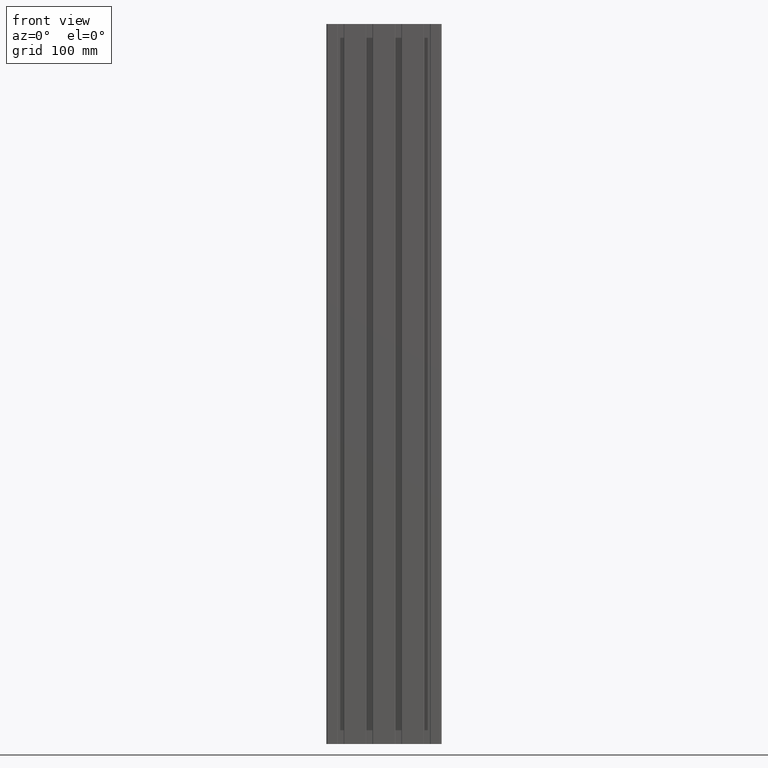
[diagram: clean part render]
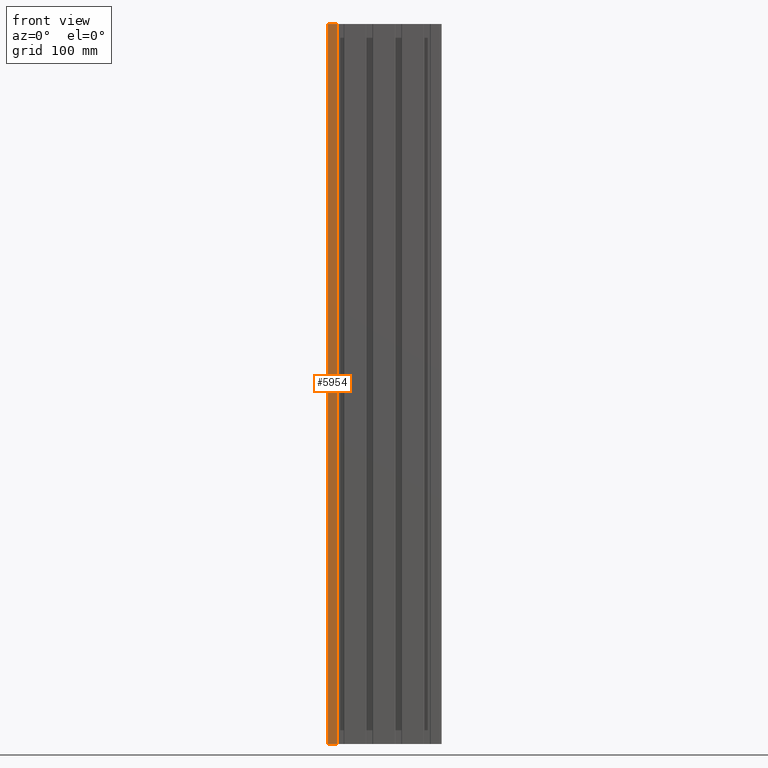
[diagram: same view with one face highlighted and labeled with its STEP entity id]
A machine part, front view. The second image highlights one B-rep face of the part: STEP entity #5954.
In plain terms, the highlighted planar face has unit normal (0, -1, 0).
Its self-contained STEP definition (entity closure, byte-faithful):
#172=PLANE('',#6579);
#454=FACE_OUTER_BOUND('',#776,.T.);
#776=EDGE_LOOP('',(#5417,#5418,#5419,#5420));
#940=LINE('',#8826,#1524);
#1131=LINE('',#9573,#1715);
#1196=LINE('',#9761,#1780);
#1328=LINE('',#9996,#1912);
#1524=VECTOR('',#6979,10.);
#1715=VECTOR('',#7566,10.);
#1780=VECTOR('',#7759,10.);
#1912=VECTOR('',#8097,10.);
#2450=VERTEX_POINT('',#8823);
#2451=VERTEX_POINT('',#8825);
#2808=VERTEX_POINT('',#9570);
#2809=VERTEX_POINT('',#9572);
#3071=EDGE_CURVE('',#2450,#2451,#940,.T.);
#3455=EDGE_CURVE('',#2808,#2809,#1131,.T.);
#3564=EDGE_CURVE('',#2809,#2450,#1196,.T.);
#3696=EDGE_CURVE('',#2451,#2808,#1328,.T.);
#5417=ORIENTED_EDGE('',*,*,#3564,.F.);
#5418=ORIENTED_EDGE('',*,*,#3455,.F.);
#5419=ORIENTED_EDGE('',*,*,#3696,.F.);
#5420=ORIENTED_EDGE('',*,*,#3071,.F.);
#5954=ADVANCED_FACE('',(#454),#172,.T.);
#6579=AXIS2_PLACEMENT_3D('',#10132,#8324,#8325);
#6979=DIRECTION('',(-1.,0.,0.));
#7566=DIRECTION('',(1.,0.,0.));
#7759=DIRECTION('',(0.,0.,-1.));
#8097=DIRECTION('',(0.,0.,1.));
#8324=DIRECTION('center_axis',(0.,-1.,0.));
#8325=DIRECTION('ref_axis',(1.,0.,0.));
#8823=CARTESIAN_POINT('',(-65.15,-40.,0.));
#8825=CARTESIAN_POINT('',(-78.,-40.,0.));
#8826=CARTESIAN_POINT('',(80.,-40.,0.));
#9570=CARTESIAN_POINT('',(-78.,-40.,1000.));
#9572=CARTESIAN_POINT('',(-65.15,-40.,1000.));
#9573=CARTESIAN_POINT('',(80.,-40.,1000.));
#9761=CARTESIAN_POINT('',(-65.15,-40.,0.));
#9996=CARTESIAN_POINT('',(-78.,-40.,0.));
#10132=CARTESIAN_POINT('Origin',(-80.,-40.,0.));